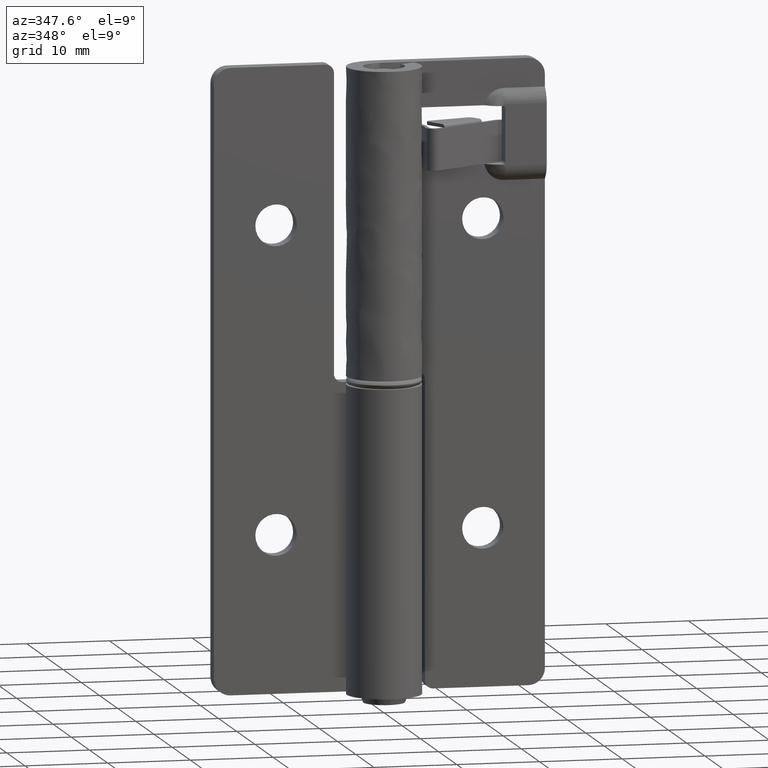
[diagram: clean part render]
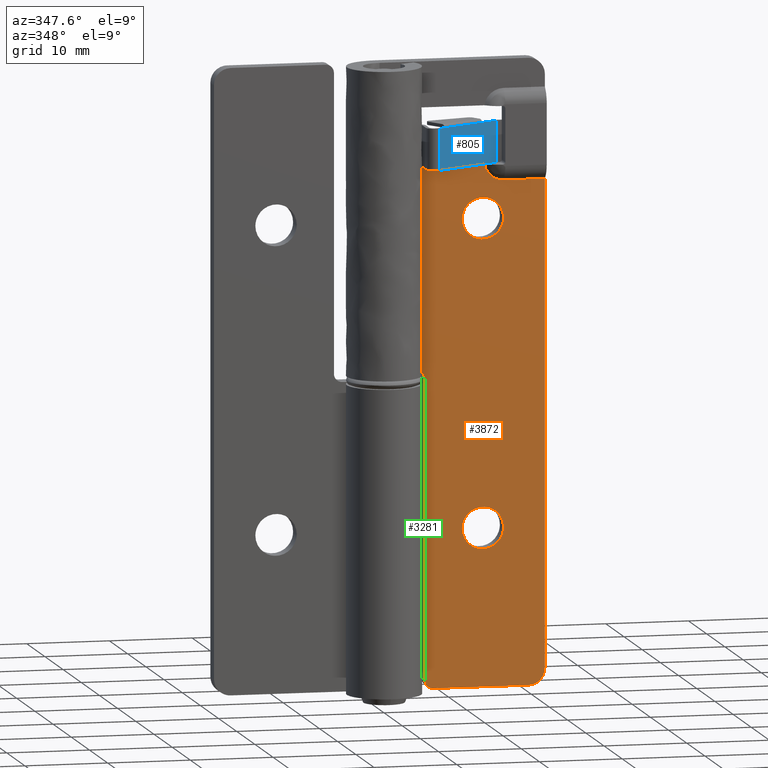
[diagram: same view with three faces highlighted in distinct colors, each labeled with its STEP entity id]
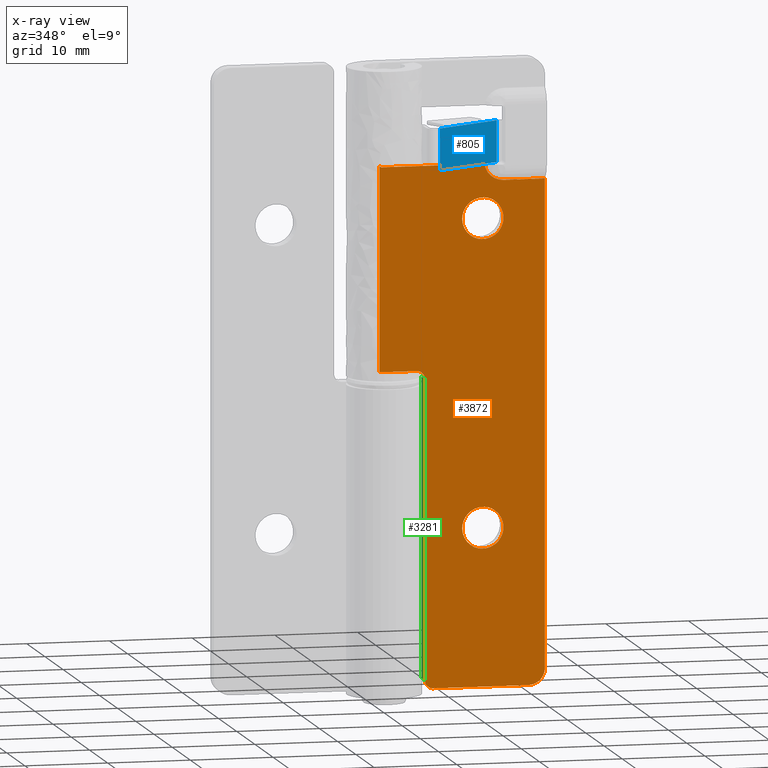
[diagram: x-ray of the same camera — body ghosted, the three highlighted faces saturated]
A machine part, auxiliary view with three faces highlighted in distinct colors.
The next image is the same camera in x-ray (body ghosted, the three faces saturated) — at least one of them is partly hidden behind the body in this view.
Their STEP definitions:

[orange] entity #3872 — the highlighted face is a freeform B-spline surface patch.
#2794=CARTESIAN_POINT('',(15.0,2.499999999951453,19.0));
#2795=VERTEX_POINT('',#2794);
#2796=CARTESIAN_POINT('',(12.696147739480260,2.499999999958900,21.492293334320170));
#2797=VERTEX_POINT('',#2796);
#2798=CARTESIAN_POINT('',(15.0,2.499999999951453,19.0));
#2799=CARTESIAN_POINT('',(15.000000000000014,2.499999999951452,21.310976228996104));
#2800=CARTESIAN_POINT('',(12.696147739480258,2.499999999958901,21.492293334320173));
#2808=(BOUNDED_CURVE()B_SPLINE_CURVE(2,(#2798,#2799,#2800),.UNSPECIFIED.,.F.,.U.)B_SPLINE_CURVE_WITH_KNOTS((3,3),(0.0,0.236331300621717),.UNSPECIFIED.)CURVE()GEOMETRIC_REPRESENTATION_ITEM()RATIONAL_B_SPLINE_CURVE((1.0,0.723120658618142,0.969723356148756))REPRESENTATION_ITEM(''));
#2809=EDGE_CURVE('',#2795,#2797,#2808,.T.);
#2850=CARTESIAN_POINT('',(12.303852260519740,2.499999999960170,16.507706665679830));
#2851=VERTEX_POINT('',#2850);
#2857=CARTESIAN_POINT('',(12.303852260519749,2.499999999960170,16.507706665679823));
#2858=CARTESIAN_POINT('',(12.401774732400130,2.499999999959853,16.499999999999996));
#2859=CARTESIAN_POINT('',(12.500000000000000,2.499999999959535,16.500000000000000));
#2860=CARTESIAN_POINT('',(15.000000000000009,2.499999999951453,16.499999999999993));
#2861=CARTESIAN_POINT('',(15.0,2.499999999951453,19.0));
#2869=(BOUNDED_CURVE()B_SPLINE_CURVE(2,(#2857,#2858,#2859,#2860,#2861),.UNSPECIFIED.,.F.,.U.)B_SPLINE_CURVE_WITH_KNOTS((3,2,3),(0.736331300621717,0.750000000000000,1.0),.UNSPECIFIED.)CURVE()GEOMETRIC_REPRESENTATION_ITEM()RATIONAL_B_SPLINE_CURVE((0.969723356148756,0.983986122568406,1.0,0.707106781186548,1.0))REPRESENTATION_ITEM(''));
#2870=EDGE_CURVE('',#2851,#2795,#2869,.T.);
#2893=CARTESIAN_POINT('',(10.0,2.499999999967618,19.0));
#2894=VERTEX_POINT('',#2893);
#2895=CARTESIAN_POINT('',(12.696147739480258,2.499999999958901,21.492293334320173));
#2896=CARTESIAN_POINT('',(12.598225267599870,2.499999999959217,21.500000000000000));
#2897=CARTESIAN_POINT('',(12.500000000000000,2.499999999959535,21.500000000000000));
#2898=CARTESIAN_POINT('',(10.000000000000002,2.499999999967618,21.499999999999996));
#2899=CARTESIAN_POINT('',(10.0,2.499999999967618,19.0));
#2907=(BOUNDED_CURVE()B_SPLINE_CURVE(2,(#2895,#2896,#2897,#2898,#2899),.UNSPECIFIED.,.F.,.U.)B_SPLINE_CURVE_WITH_KNOTS((3,2,3),(0.236331300621718,0.250000000000000,0.500000000000000),.UNSPECIFIED.)CURVE()GEOMETRIC_REPRESENTATION_ITEM()RATIONAL_B_SPLINE_CURVE((0.969723356148756,0.983986122568406,1.0,0.707106781186548,1.0))REPRESENTATION_ITEM(''));
#2908=EDGE_CURVE('',#2797,#2894,#2907,.T.);
#2910=CARTESIAN_POINT('',(10.0,2.499999999967618,19.0));
#2911=CARTESIAN_POINT('',(10.0,2.499999999967616,16.689023771003900));
#2912=CARTESIAN_POINT('',(12.303852260519740,2.499999999960169,16.507706665679827));
#2920=(BOUNDED_CURVE()B_SPLINE_CURVE(2,(#2910,#2911,#2912),.UNSPECIFIED.,.F.,.U.)B_SPLINE_CURVE_WITH_KNOTS((3,3),(0.500000000000000,0.736331300621717),.UNSPECIFIED.)CURVE()GEOMETRIC_REPRESENTATION_ITEM()RATIONAL_B_SPLINE_CURVE((1.0,0.723120658618142,0.969723356148756))REPRESENTATION_ITEM(''));
#2921=EDGE_CURVE('',#2894,#2851,#2920,.T.);
#2976=CARTESIAN_POINT('',(15.000000000000220,2.499999999951453,56.0));
#2977=VERTEX_POINT('',#2976);
#2978=CARTESIAN_POINT('',(12.696147739480480,2.499999999958901,58.492293334320181));
#2979=VERTEX_POINT('',#2978);
#2980=CARTESIAN_POINT('',(15.000000000000220,2.499999999951453,56.0));
#2981=CARTESIAN_POINT('',(15.000000000000224,2.499999999951453,58.310976228996104));
#2982=CARTESIAN_POINT('',(12.696147739480470,2.499999999958900,58.492293334320166));
#2990=(BOUNDED_CURVE()B_SPLINE_CURVE(2,(#2980,#2981,#2982),.UNSPECIFIED.,.F.,.U.)B_SPLINE_CURVE_WITH_KNOTS((3,3),(0.0,0.236331300621718),.UNSPECIFIED.)CURVE()GEOMETRIC_REPRESENTATION_ITEM()RATIONAL_B_SPLINE_CURVE((1.0,0.723120658618142,0.969723356148756))REPRESENTATION_ITEM(''));
#2991=EDGE_CURVE('',#2977,#2979,#2990,.T.);
#3032=CARTESIAN_POINT('',(12.303852260519960,2.499999999960170,53.507706665679819));
#3033=VERTEX_POINT('',#3032);
#3039=CARTESIAN_POINT('',(12.303852260519964,2.499999999960170,53.507706665679827));
#3040=CARTESIAN_POINT('',(12.401774732400353,2.499999999959853,53.500000000000000));
#3041=CARTESIAN_POINT('',(12.500000000000220,2.499999999959535,53.500000000000000));
#3042=CARTESIAN_POINT('',(15.000000000000220,2.499999999951453,53.500000000000007));
#3043=CARTESIAN_POINT('',(15.000000000000220,2.499999999951453,56.0));
#3051=(BOUNDED_CURVE()B_SPLINE_CURVE(2,(#3039,#3040,#3041,#3042,#3043),.UNSPECIFIED.,.F.,.U.)B_SPLINE_CURVE_WITH_KNOTS((3,2,3),(0.736331300621717,0.750000000000000,1.0),.UNSPECIFIED.)CURVE()GEOMETRIC_REPRESENTATION_ITEM()RATIONAL_B_SPLINE_CURVE((0.969723356148756,0.983986122568406,1.0,0.707106781186548,1.0))REPRESENTATION_ITEM(''));
#3052=EDGE_CURVE('',#3033,#2977,#3051,.T.);
#3075=CARTESIAN_POINT('',(10.000000000000220,2.499999999967618,56.0));
#3076=VERTEX_POINT('',#3075);
#3077=CARTESIAN_POINT('',(12.696147739480471,2.499999999958900,58.492293334320173));
#3078=CARTESIAN_POINT('',(12.598225267600093,2.499999999959218,58.500000000000007));
#3079=CARTESIAN_POINT('',(12.500000000000220,2.499999999959535,58.500000000000000));
#3080=CARTESIAN_POINT('',(10.000000000000220,2.499999999967618,58.499999999999993));
#3081=CARTESIAN_POINT('',(10.000000000000220,2.499999999967618,56.0));
#3089=(BOUNDED_CURVE()B_SPLINE_CURVE(2,(#3077,#3078,#3079,#3080,#3081),.UNSPECIFIED.,.F.,.U.)B_SPLINE_CURVE_WITH_KNOTS((3,2,3),(0.236331300621718,0.250000000000000,0.500000000000000),.UNSPECIFIED.)CURVE()GEOMETRIC_REPRESENTATION_ITEM()RATIONAL_B_SPLINE_CURVE((0.969723356148756,0.983986122568406,1.0,0.707106781186548,1.0))REPRESENTATION_ITEM(''));
#3090=EDGE_CURVE('',#2979,#3076,#3089,.T.);
#3092=CARTESIAN_POINT('',(10.000000000000220,2.499999999967618,56.0));
#3093=CARTESIAN_POINT('',(10.000000000000220,2.499999999967618,53.689023771003896));
#3094=CARTESIAN_POINT('',(12.303852260519964,2.499999999960170,53.507706665679827));
#3102=(BOUNDED_CURVE()B_SPLINE_CURVE(2,(#3092,#3093,#3094),.UNSPECIFIED.,.F.,.U.)B_SPLINE_CURVE_WITH_KNOTS((3,3),(0.500000000000000,0.736331300621717),.UNSPECIFIED.)CURVE()GEOMETRIC_REPRESENTATION_ITEM()RATIONAL_B_SPLINE_CURVE((1.0,0.723120658618142,0.969723356148756))REPRESENTATION_ITEM(''));
#3103=EDGE_CURVE('',#3076,#3033,#3102,.T.);
#3154=CARTESIAN_POINT('',(5.500000000000000,2.499999999982190,1.0));
#3155=VERTEX_POINT('',#3154);
#3156=CARTESIAN_POINT('',(6.500000000000000,2.499999999978955,0.0));
#3157=VERTEX_POINT('',#3156);
#3158=CARTESIAN_POINT('',(5.500000000000000,2.499999999982189,1.0));
#3159=CARTESIAN_POINT('',(5.500000000000001,2.499999999982188,0.0));
#3160=CARTESIAN_POINT('',(6.500000000000000,2.499999999978955,0.0));
#3168=(BOUNDED_CURVE()B_SPLINE_CURVE(2,(#3158,#3159,#3160),.UNSPECIFIED.,.F.,.U.)CURVE()GEOMETRIC_REPRESENTATION_ITEM()QUASI_UNIFORM_CURVE()RATIONAL_B_SPLINE_CURVE((1.0,0.707106781186548,1.0))REPRESENTATION_ITEM(''));
#3169=EDGE_CURVE('',#3155,#3157,#3168,.T.);
#3215=CARTESIAN_POINT('',(4.500000000000000,2.499999999985425,38.0));
#3216=VERTEX_POINT('',#3215);
#3217=CARTESIAN_POINT('',(5.500000000000000,2.499999999982190,37.0));
#3218=VERTEX_POINT('',#3217);
#3219=CARTESIAN_POINT('',(4.500000000000000,2.499999999985405,38.0));
#3220=CARTESIAN_POINT('',(5.500000000000001,2.499999999982173,38.0));
#3221=CARTESIAN_POINT('',(5.500000000000000,2.499999999982172,37.0));
#3229=(BOUNDED_CURVE()B_SPLINE_CURVE(2,(#3219,#3220,#3221),.UNSPECIFIED.,.F.,.U.)CURVE()GEOMETRIC_REPRESENTATION_ITEM()QUASI_UNIFORM_CURVE()RATIONAL_B_SPLINE_CURVE((1.0,0.707106781186548,1.0))REPRESENTATION_ITEM(''));
#3230=EDGE_CURVE('',#3216,#3218,#3229,.T.);
#3267=CARTESIAN_POINT('',(5.500000000000000,2.499999999982190,1.0));
#3268=CARTESIAN_POINT('',(5.500000000000000,2.499999999982190,37.0));
#3269=QUASI_UNIFORM_CURVE('',1,(#3267,#3268),.UNSPECIFIED.,.F.,.U.);
#3270=EDGE_CURVE('',#3155,#3218,#3269,.T.);
#3295=CARTESIAN_POINT('',(-6.924698E-012,2.499999999999970,38.0));
#3296=VERTEX_POINT('',#3295);
#3297=CARTESIAN_POINT('',(4.500000000000000,2.499999999985425,38.0));
#3298=CARTESIAN_POINT('',(-6.924698E-012,2.499999999999970,38.0));
#3299=QUASI_UNIFORM_CURVE('',1,(#3297,#3298),.UNSPECIFIED.,.F.,.U.);
#3300=EDGE_CURVE('',#3216,#3296,#3299,.T.);
#3487=CARTESIAN_POINT('',(17.999999999984951,2.499999999941780,0.0));
#3488=VERTEX_POINT('',#3487);
#3489=CARTESIAN_POINT('',(6.500000000000000,2.499999999978955,0.0));
#3490=CARTESIAN_POINT('',(17.999999999984951,2.499999999941780,0.0));
#3491=QUASI_UNIFORM_CURVE('',1,(#3489,#3490),.UNSPECIFIED.,.F.,.U.);
#3492=EDGE_CURVE('',#3157,#3488,#3491,.T.);
#3538=CARTESIAN_POINT('',(1.421085E-014,2.499999999999945,62.799999999999997));
#3539=VERTEX_POINT('',#3538);
#3540=CARTESIAN_POINT('',(1.421085E-014,2.499999999999945,62.799999999999997));
#3541=CARTESIAN_POINT('',(-6.924698E-012,2.499999999999970,38.0));
#3542=QUASI_UNIFORM_CURVE('',1,(#3540,#3541),.UNSPECIFIED.,.F.,.U.);
#3543=EDGE_CURVE('',#3539,#3296,#3542,.T.);
#3698=CARTESIAN_POINT('',(20.998999961236471,2.499999999932081,-3.271724873048289));
#3699=CARTESIAN_POINT('',(-0.999000497685194,2.500000000003200,-3.271724873048289));
#3700=CARTESIAN_POINT('',(20.998999961236471,2.499999999932081,68.771726629895184));
#3701=CARTESIAN_POINT('',(-0.999000497685194,2.500000000003200,68.771726629895184));
#3702=B_SPLINE_SURFACE_WITH_KNOTS('',1,1,((#3698,#3700),(#3699,#3701)),.UNSPECIFIED.,.F.,.F.,.U.,(2,2),(2,2),(0.0,21.998000458921670),(0.0,72.043451502943469),.UNSPECIFIED.);
#3703=CARTESIAN_POINT('',(0.300000000000011,2.499999999998950,62.499999999998693));
#3704=VERTEX_POINT('',#3703);
#3705=CARTESIAN_POINT('',(1.149254E-014,2.499999999999920,62.799999999999997));
#3706=CARTESIAN_POINT('',(1.149254E-014,2.499999999999920,62.500000000000007));
#3707=CARTESIAN_POINT('',(0.300000000000011,2.499999999998950,62.499999999999993));
#3715=(BOUNDED_CURVE()B_SPLINE_CURVE(2,(#3705,#3706,#3707),.UNSPECIFIED.,.F.,.U.)CURVE()GEOMETRIC_REPRESENTATION_ITEM()QUASI_UNIFORM_CURVE()RATIONAL_B_SPLINE_CURVE((1.0,0.707106781186547,1.0))REPRESENTATION_ITEM(''));
#3716=EDGE_CURVE('',#3539,#3704,#3715,.T.);
#3717=ORIENTED_EDGE('',*,*,#3716,.F.);
#3718=ORIENTED_EDGE('',*,*,#3543,.T.);
#3719=ORIENTED_EDGE('',*,*,#3300,.F.);
#3720=ORIENTED_EDGE('',*,*,#3230,.T.);
#3721=ORIENTED_EDGE('',*,*,#3270,.F.);
#3722=ORIENTED_EDGE('',*,*,#3169,.T.);
#3723=ORIENTED_EDGE('',*,*,#3492,.T.);
#3724=CARTESIAN_POINT('',(19.999999999984951,2.499999999935310,2.0));
#3725=VERTEX_POINT('',#3724);
#3726=CARTESIAN_POINT('',(17.999999999984951,2.499999999941780,0.0));
#3727=CARTESIAN_POINT('',(19.999999999984951,2.499999999935314,0.0));
#3728=CARTESIAN_POINT('',(19.999999999984951,2.499999999935314,2.0));
#3736=(BOUNDED_CURVE()B_SPLINE_CURVE(2,(#3726,#3727,#3728),.UNSPECIFIED.,.F.,.U.)CURVE()GEOMETRIC_REPRESENTATION_ITEM()QUASI_UNIFORM_CURVE()RATIONAL_B_SPLINE_CURVE((1.0,0.707106781186548,1.0))REPRESENTATION_ITEM(''));
#3737=EDGE_CURVE('',#3488,#3725,#3736,.T.);
#3738=ORIENTED_EDGE('',*,*,#3737,.T.);
#3739=CARTESIAN_POINT('',(20.0,2.499999999935330,60.500000000000000));
#3740=VERTEX_POINT('',#3739);
#3741=CARTESIAN_POINT('',(20.0,2.499999999935330,60.500000000000000));
#3742=CARTESIAN_POINT('',(19.999999999984951,2.499999999935310,2.0));
#3743=QUASI_UNIFORM_CURVE('',1,(#3741,#3742),.UNSPECIFIED.,.F.,.U.);
#3744=EDGE_CURVE('',#3740,#3725,#3743,.T.);
#3745=ORIENTED_EDGE('',*,*,#3744,.F.);
#3746=CARTESIAN_POINT('',(14.999999999887740,2.499999999951475,60.500000000000000));
#3747=VERTEX_POINT('',#3746);
#3748=CARTESIAN_POINT('',(14.999999999887740,2.499999999951475,60.500000000000000));
#3749=CARTESIAN_POINT('',(20.0,2.499999999935330,60.500000000000000));
#3750=QUASI_UNIFORM_CURVE('',1,(#3748,#3749),.UNSPECIFIED.,.F.,.U.);
#3751=EDGE_CURVE('',#3747,#3740,#3750,.T.);
#3752=ORIENTED_EDGE('',*,*,#3751,.F.);
#3753=CARTESIAN_POINT('',(12.690598923130519,2.499999999958945,62.500000000000000));
#3754=VERTEX_POINT('',#3753);
#3755=CARTESIAN_POINT('',(12.690598923130519,2.499999999958945,62.500000000000000));
#3756=CARTESIAN_POINT('',(12.979274057724385,2.499999999957963,60.500000000000192));
#3757=CARTESIAN_POINT('',(14.999999999887740,2.499999999951430,60.500000000000199));
#3765=(BOUNDED_CURVE()B_SPLINE_CURVE(2,(#3755,#3756,#3757),.UNSPECIFIED.,.F.,.U.)CURVE()GEOMETRIC_REPRESENTATION_ITEM()QUASI_UNIFORM_CURVE()RATIONAL_B_SPLINE_CURVE((1.0,0.755928946018517,1.0))REPRESENTATION_ITEM(''));
#3766=EDGE_CURVE('',#3754,#3747,#3765,.T.);
#3767=ORIENTED_EDGE('',*,*,#3766,.F.);
#3768=CARTESIAN_POINT('',(10.999999999851580,2.499999999964420,62.500000000000000));
#3769=VERTEX_POINT('',#3768);
#3770=CARTESIAN_POINT('',(12.690598923130519,2.499999999958945,62.500000000000000));
#3771=CARTESIAN_POINT('',(10.999999999851580,2.499999999964420,62.500000000000000));
#3772=QUASI_UNIFORM_CURVE('',1,(#3770,#3771),.UNSPECIFIED.,.F.,.U.);
#3773=EDGE_CURVE('',#3754,#3769,#3772,.T.);
#3774=ORIENTED_EDGE('',*,*,#3773,.T.);
#3775=CARTESIAN_POINT('',(10.499999999851520,2.499999999965975,63.0));
#3776=VERTEX_POINT('',#3775);
#3777=CARTESIAN_POINT('',(10.499999999851520,2.499999999965975,63.0));
#3778=CARTESIAN_POINT('',(10.499933827979939,2.499999999966070,62.934542944140162));
#3779=CARTESIAN_POINT('',(10.526073623644310,2.499999999965930,62.803694729058719));
#3780=CARTESIAN_POINT('',(10.641816021702640,2.499999999965589,62.630242006993839));
#3781=CARTESIAN_POINT('',(10.811829518250351,2.499999999965024,62.522674662754973));
#3782=CARTESIAN_POINT('',(10.942731861329451,2.499999999964611,62.499975629340483));
#3783=CARTESIAN_POINT('',(10.999999999851580,2.499999999964420,62.500000000000000));
#3784=B_SPLINE_CURVE_WITH_KNOTS('',3,(#3777,#3778,#3779,#3780,#3781,#3782,#3783),.UNSPECIFIED.,.F.,.U.,(4,1,1,1,4),(0.000000116229934,0.196369831422807,0.392738592162958,0.613654103954850,0.785476941648969),.UNSPECIFIED.);
#3785=EDGE_CURVE('',#3776,#3769,#3784,.T.);
#3786=ORIENTED_EDGE('',*,*,#3785,.F.);
#3787=CARTESIAN_POINT('',(10.499999999851580,2.499999999965975,65.0));
#3788=VERTEX_POINT('',#3787);
#3789=CARTESIAN_POINT('',(10.499999999851520,2.499999999965975,63.0));
#3790=CARTESIAN_POINT('',(10.499999999851580,2.499999999965975,65.0));
#3791=QUASI_UNIFORM_CURVE('',1,(#3789,#3790),.UNSPECIFIED.,.F.,.U.);
#3792=EDGE_CURVE('',#3776,#3788,#3791,.T.);
#3793=ORIENTED_EDGE('',*,*,#3792,.T.);
#3794=CARTESIAN_POINT('',(9.999999999851529,2.499999999967640,65.500000000000000));
#3795=VERTEX_POINT('',#3794);
#3796=CARTESIAN_POINT('',(10.499999999851530,2.499999999966024,65.0));
#3797=CARTESIAN_POINT('',(10.499999999851529,2.499999999966024,65.500000000000000));
#3798=CARTESIAN_POINT('',(9.999999999851529,2.499999999967640,65.500000000000000));
#3806=(BOUNDED_CURVE()B_SPLINE_CURVE(2,(#3796,#3797,#3798),.UNSPECIFIED.,.F.,.U.)CURVE()GEOMETRIC_REPRESENTATION_ITEM()QUASI_UNIFORM_CURVE()RATIONAL_B_SPLINE_CURVE((1.0,0.707106781186548,1.0))REPRESENTATION_ITEM(''));
#3807=EDGE_CURVE('',#3788,#3795,#3806,.T.);
#3808=ORIENTED_EDGE('',*,*,#3807,.T.);
#3809=CARTESIAN_POINT('',(8.000000000071399,2.499999999974080,65.500000000000000));
#3810=VERTEX_POINT('',#3809);
#3811=CARTESIAN_POINT('',(9.999999999851529,2.499999999967640,65.500000000000000));
#3812=CARTESIAN_POINT('',(8.000000000071399,2.499999999974080,65.500000000000000));
#3813=QUASI_UNIFORM_CURVE('',1,(#3811,#3812),.UNSPECIFIED.,.F.,.U.);
#3814=EDGE_CURVE('',#3795,#3810,#3813,.T.);
#3815=ORIENTED_EDGE('',*,*,#3814,.T.);
#3816=CARTESIAN_POINT('',(7.500000000071400,2.499999999975745,65.0));
#3817=VERTEX_POINT('',#3816);
#3818=CARTESIAN_POINT('',(8.000000000071399,2.499999999974080,65.500000000000000));
#3819=CARTESIAN_POINT('',(7.500000000071399,2.499999999975697,65.500000000000000));
#3820=CARTESIAN_POINT('',(7.500000000071399,2.499999999975697,65.0));
#3828=(BOUNDED_CURVE()B_SPLINE_CURVE(2,(#3818,#3819,#3820),.UNSPECIFIED.,.F.,.U.)CURVE()GEOMETRIC_REPRESENTATION_ITEM()QUASI_UNIFORM_CURVE()RATIONAL_B_SPLINE_CURVE((1.0,0.707106781186548,1.0))REPRESENTATION_ITEM(''));
#3829=EDGE_CURVE('',#3810,#3817,#3828,.T.);
#3830=ORIENTED_EDGE('',*,*,#3829,.T.);
#3831=CARTESIAN_POINT('',(7.500000000071400,2.499999999975745,62.999999999999112));
#3832=VERTEX_POINT('',#3831);
#3833=CARTESIAN_POINT('',(7.500000000071400,2.499999999975745,65.0));
#3834=CARTESIAN_POINT('',(7.500000000071400,2.499999999975745,62.999999999999112));
#3835=QUASI_UNIFORM_CURVE('',1,(#3833,#3834),.UNSPECIFIED.,.F.,.U.);
#3836=EDGE_CURVE('',#3817,#3832,#3835,.T.);
#3837=ORIENTED_EDGE('',*,*,#3836,.T.);
#3838=CARTESIAN_POINT('',(7.000000000071401,2.499999999977300,62.499999999999098));
#3839=VERTEX_POINT('',#3838);
#3840=CARTESIAN_POINT('',(7.000000000071401,2.499999999977300,62.499999999999112));
#3841=CARTESIAN_POINT('',(7.500000000071402,2.499999999975684,62.499999999999105));
#3842=CARTESIAN_POINT('',(7.500000000071401,2.499999999975684,62.999999999999112));
#3850=(BOUNDED_CURVE()B_SPLINE_CURVE(2,(#3840,#3841,#3842),.UNSPECIFIED.,.F.,.U.)CURVE()GEOMETRIC_REPRESENTATION_ITEM()QUASI_UNIFORM_CURVE()RATIONAL_B_SPLINE_CURVE((1.0,0.707106781186548,1.0))REPRESENTATION_ITEM(''));
#3851=EDGE_CURVE('',#3839,#3832,#3850,.T.);
#3852=ORIENTED_EDGE('',*,*,#3851,.F.);
#3853=CARTESIAN_POINT('',(7.000000000071401,2.499999999977300,62.499999999999098));
#3854=CARTESIAN_POINT('',(0.300000000000011,2.499999999998950,62.499999999998693));
#3855=QUASI_UNIFORM_CURVE('',1,(#3853,#3854),.UNSPECIFIED.,.F.,.U.);
#3856=EDGE_CURVE('',#3839,#3704,#3855,.T.);
#3857=ORIENTED_EDGE('',*,*,#3856,.T.);
#3858=EDGE_LOOP('',(#3717,#3718,#3719,#3720,#3721,#3722,#3723,#3738,#3745,#3752,#3767,#3774,#3786,#3793,#3808,#3815,#3830,#3837,#3852,#3857));
#3859=FACE_OUTER_BOUND('',#3858,.T.);
#3860=ORIENTED_EDGE('',*,*,#3103,.F.);
#3861=ORIENTED_EDGE('',*,*,#3090,.F.);
#3862=ORIENTED_EDGE('',*,*,#2991,.F.);
#3863=ORIENTED_EDGE('',*,*,#3052,.F.);
#3864=EDGE_LOOP('',(#3860,#3861,#3862,#3863));
#3865=FACE_BOUND('',#3864,.T.);
#3866=ORIENTED_EDGE('',*,*,#2921,.F.);
#3867=ORIENTED_EDGE('',*,*,#2908,.F.);
#3868=ORIENTED_EDGE('',*,*,#2809,.F.);
#3869=ORIENTED_EDGE('',*,*,#2870,.F.);
#3870=EDGE_LOOP('',(#3866,#3867,#3868,#3869));
#3871=FACE_BOUND('',#3870,.T.);
#3872=ADVANCED_FACE('',(#3859,#3865,#3871),#3702,.F.);

[blue] entity #805 — the highlighted face is a freeform B-spline surface patch.
#173=CARTESIAN_POINT('',(12.331842109063540,2.239358580457535,67.499999999999105));
#174=VERTEX_POINT('',#173);
#192=CARTESIAN_POINT('',(7.150518793768170,-0.786180826387909,67.499999999999105));
#193=VERTEX_POINT('',#192);
#207=CARTESIAN_POINT('',(12.331842109063540,2.239358580457535,67.499999999999105));
#208=CARTESIAN_POINT('',(7.150518793768170,-0.786180826387909,67.499999999999105));
#209=QUASI_UNIFORM_CURVE('',1,(#207,#208),.UNSPECIFIED.,.F.,.U.);
#210=EDGE_CURVE('',#174,#193,#209,.T.);
#503=CARTESIAN_POINT('',(14.350526085199419,3.418132331506190,67.499999999999105));
#504=VERTEX_POINT('',#503);
#518=CARTESIAN_POINT('',(14.350526085199419,3.418132331506190,62.499999999999098));
#519=VERTEX_POINT('',#518);
#520=CARTESIAN_POINT('',(14.350526085199419,3.418132331506190,62.499999999999098));
#521=CARTESIAN_POINT('',(14.350526085199419,3.418132331506190,67.499999999999105));
#522=QUASI_UNIFORM_CURVE('',1,(#520,#521),.UNSPECIFIED.,.F.,.U.);
#523=EDGE_CURVE('',#519,#504,#522,.T.);
#604=CARTESIAN_POINT('',(6.504256567792540,-1.163553885905952,62.499999999999098));
#605=VERTEX_POINT('',#604);
#606=CARTESIAN_POINT('',(6.504256567792540,-1.163553885905952,62.499999999999098));
#607=CARTESIAN_POINT('',(14.350526085199419,3.418132331506190,62.499999999999098));
#608=QUASI_UNIFORM_CURVE('',1,(#606,#607),.UNSPECIFIED.,.F.,.U.);
#609=EDGE_CURVE('',#605,#519,#608,.T.);
#769=CARTESIAN_POINT('',(12.331842109063540,2.239358580457535,67.499999999999105));
#770=CARTESIAN_POINT('',(14.350526085199419,3.418132331506190,67.499999999999105));
#771=QUASI_UNIFORM_CURVE('',1,(#769,#770),.UNSPECIFIED.,.F.,.U.);
#772=EDGE_CURVE('',#174,#504,#771,.T.);
#782=CARTESIAN_POINT('',(14.742447232386310,3.646987549185723,62.250250009690070));
#783=CARTESIAN_POINT('',(6.112335210152287,-1.392409226475853,62.250250009690070));
#784=CARTESIAN_POINT('',(14.742447232386310,3.646987549185723,67.749750124418597));
#785=CARTESIAN_POINT('',(6.112335210152287,-1.392409226475853,67.749750124418597));
#786=B_SPLINE_SURFACE_WITH_KNOTS('',1,1,((#782,#784),(#783,#785)),.UNSPECIFIED.,.F.,.F.,.U.,(2,2),(2,2),(0.0,9.993715694317929),(0.0,5.499500114728527),.UNSPECIFIED.);
#787=ORIENTED_EDGE('',*,*,#772,.F.);
#788=ORIENTED_EDGE('',*,*,#210,.T.);
#789=CARTESIAN_POINT('',(6.504256567792540,-1.163553885905952,67.499999999999105));
#790=VERTEX_POINT('',#789);
#791=CARTESIAN_POINT('',(6.504256567792540,-1.163553885905952,67.499999999999105));
#792=CARTESIAN_POINT('',(7.150518793768170,-0.786180826387909,67.499999999999105));
#793=QUASI_UNIFORM_CURVE('',1,(#791,#792),.UNSPECIFIED.,.F.,.U.);
#794=EDGE_CURVE('',#790,#193,#793,.T.);
#795=ORIENTED_EDGE('',*,*,#794,.F.);
#796=CARTESIAN_POINT('',(6.504256567792540,-1.163553885905952,67.499999999999105));
#797=CARTESIAN_POINT('',(6.504256567792540,-1.163553885905952,62.499999999999098));
#798=QUASI_UNIFORM_CURVE('',1,(#796,#797),.UNSPECIFIED.,.F.,.U.);
#799=EDGE_CURVE('',#790,#605,#798,.T.);
#800=ORIENTED_EDGE('',*,*,#799,.T.);
#801=ORIENTED_EDGE('',*,*,#609,.T.);
#802=ORIENTED_EDGE('',*,*,#523,.T.);
#803=EDGE_LOOP('',(#787,#788,#795,#800,#801,#802));
#804=FACE_OUTER_BOUND('',#803,.T.);
#805=ADVANCED_FACE('',(#804),#786,.F.);

[green] entity #3281 — the highlighted face is a freeform B-spline surface patch.
#3154=CARTESIAN_POINT('',(5.500000000000000,2.499999999982190,1.0));
#3155=VERTEX_POINT('',#3154);
#3171=CARTESIAN_POINT('',(5.500000000000000,4.500000000006279,1.0));
#3172=VERTEX_POINT('',#3171);
#3173=CARTESIAN_POINT('',(5.500000000000000,4.500000000006279,1.0));
#3174=CARTESIAN_POINT('',(5.500000000000000,2.499999999982190,1.0));
#3175=QUASI_UNIFORM_CURVE('',1,(#3173,#3174),.UNSPECIFIED.,.F.,.U.);
#3176=EDGE_CURVE('',#3172,#3155,#3175,.T.);
#3217=CARTESIAN_POINT('',(5.500000000000000,2.499999999982190,37.0));
#3218=VERTEX_POINT('',#3217);
#3239=CARTESIAN_POINT('',(5.500000000000000,4.500000000006279,37.0));
#3240=VERTEX_POINT('',#3239);
#3254=CARTESIAN_POINT('',(5.500000000000000,2.499999999982190,37.0));
#3255=CARTESIAN_POINT('',(5.500000000000000,4.500000000006279,37.0));
#3256=QUASI_UNIFORM_CURVE('',1,(#3254,#3255),.UNSPECIFIED.,.F.,.U.);
#3257=EDGE_CURVE('',#3218,#3240,#3256,.T.);
#3262=CARTESIAN_POINT('',(5.500000000000000,2.400100003857375,-0.798199930225013));
#3263=CARTESIAN_POINT('',(5.500000000000000,2.400100003857375,38.798200895820273));
#3264=CARTESIAN_POINT('',(5.500000000000000,4.599900049775275,-0.798199930225013));
#3265=CARTESIAN_POINT('',(5.500000000000000,4.599900049775275,38.798200895820273));
#3266=B_SPLINE_SURFACE_WITH_KNOTS('',1,1,((#3262,#3264),(#3263,#3265)),.UNSPECIFIED.,.F.,.F.,.U.,(2,2),(2,2),(0.0,39.596400826045283),(0.0,2.199800045917901),.UNSPECIFIED.);
#3267=CARTESIAN_POINT('',(5.500000000000000,2.499999999982190,1.0));
#3268=CARTESIAN_POINT('',(5.500000000000000,2.499999999982190,37.0));
#3269=QUASI_UNIFORM_CURVE('',1,(#3267,#3268),.UNSPECIFIED.,.F.,.U.);
#3270=EDGE_CURVE('',#3155,#3218,#3269,.T.);
#3271=ORIENTED_EDGE('',*,*,#3270,.T.);
#3272=ORIENTED_EDGE('',*,*,#3257,.T.);
#3273=CARTESIAN_POINT('',(5.500000000000000,4.500000000006279,1.0));
#3274=CARTESIAN_POINT('',(5.500000000000000,4.500000000006279,37.0));
#3275=QUASI_UNIFORM_CURVE('',1,(#3273,#3274),.UNSPECIFIED.,.F.,.U.);
#3276=EDGE_CURVE('',#3172,#3240,#3275,.T.);
#3277=ORIENTED_EDGE('',*,*,#3276,.F.);
#3278=ORIENTED_EDGE('',*,*,#3176,.T.);
#3279=EDGE_LOOP('',(#3271,#3272,#3277,#3278));
#3280=FACE_OUTER_BOUND('',#3279,.T.);
#3281=ADVANCED_FACE('',(#3280),#3266,.T.);